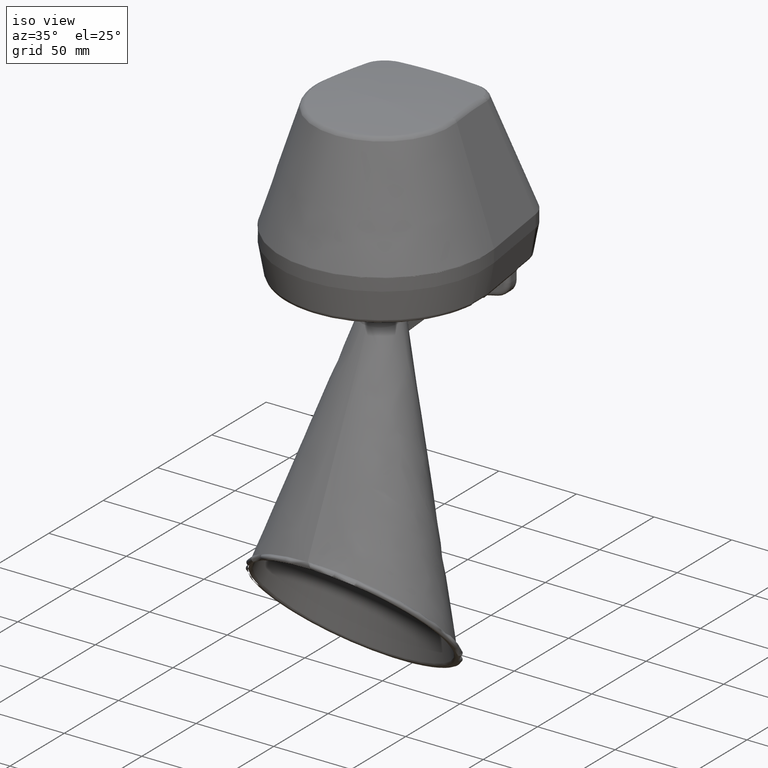
[diagram: clean part render]
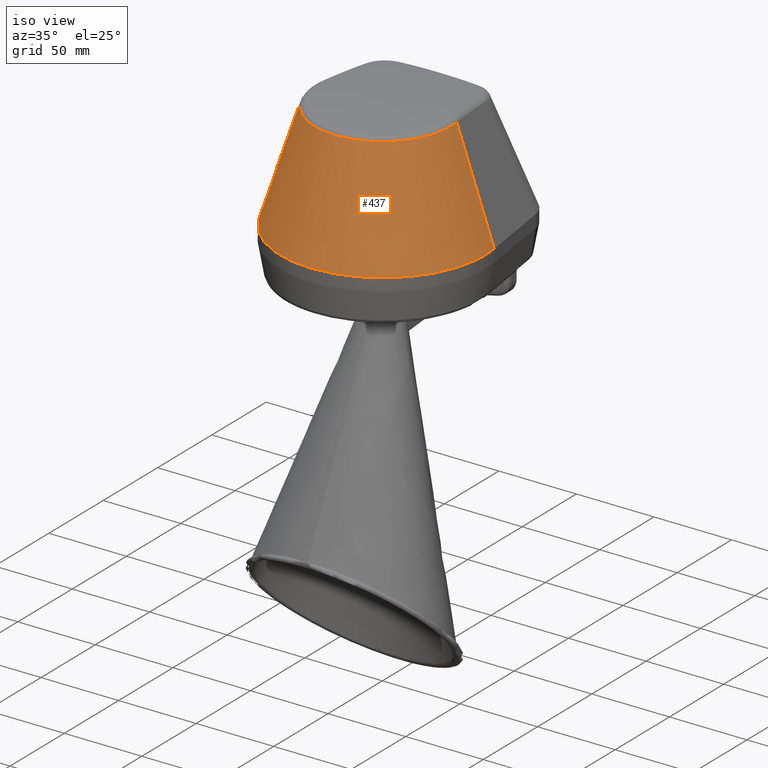
[diagram: same view with one face highlighted and labeled with its STEP entity id]
A machine part, iso view. The second image highlights one B-rep face of the part: STEP entity #437.
In plain terms, the highlighted face is a freeform B-spline surface patch.
Its self-contained STEP definition (entity closure, byte-faithful):
#201=(
BOUNDED_SURFACE()
B_SPLINE_SURFACE(4,1,((#4461,#4462),(#4463,#4464),(#4465,#4466),(#4467,#4468),
(#4469,#4470),(#4471,#4472),(#4473,#4474),(#4475,#4476),(#4477,#4478),(#4479,
#4480),(#4481,#4482)),.UNSPECIFIED.,.F.,.F.,.F.)
B_SPLINE_SURFACE_WITH_KNOTS((5,3,3,5),(2,2),(0.,0.333333333333334,0.666666666666667,
1.),(0.,1.),.UNSPECIFIED.)
GEOMETRIC_REPRESENTATION_ITEM()
RATIONAL_B_SPLINE_SURFACE(((1.02866897550093,1.02870312515866),(1.02866897550093,
1.02870312515866),(1.01136291227432,1.01143669071218),(1.02866897550093,
1.02870312515866),(1.02866897550093,1.02870312515866),(1.01136291227432,
1.01143669071218),(1.02866897550093,1.02870312515866),(1.02866897550093,
1.02870312515866),(1.01136291227432,1.01143669071218),(1.02866897550093,
1.02870312515866),(1.02866897550093,1.02870312515866)))
REPRESENTATION_ITEM('')
SURFACE()
);
#282=(
BOUNDED_CURVE()
B_SPLINE_CURVE(1,(#4283,#4284,#4285,#4286,#4287),.UNSPECIFIED.,.F.,.F.)
B_SPLINE_CURVE_WITH_KNOTS((2,1,1,1,2),(0.,0.115384615384615,0.834101757485847,
0.884615384615385,1.),.UNSPECIFIED.)
CURVE()
GEOMETRIC_REPRESENTATION_ITEM()
RATIONAL_B_SPLINE_CURVE((1.02866897550093,1.02866897550093,1.02870312515866,
1.02870312515866,1.02870312515866))
REPRESENTATION_ITEM('')
);
#283=(
BOUNDED_CURVE()
B_SPLINE_CURVE(1,(#4375,#4376,#4377,#4378,#4379),.UNSPECIFIED.,.F.,.F.)
B_SPLINE_CURVE_WITH_KNOTS((2,1,1,1,2),(0.,0.115384615384615,0.834101859380521,
0.884615384615385,1.),.UNSPECIFIED.)
CURVE()
GEOMETRIC_REPRESENTATION_ITEM()
RATIONAL_B_SPLINE_CURVE((1.02866897550093,1.02866897550093,1.02870312515866,
1.02870312515866,1.02870312515866))
REPRESENTATION_ITEM('')
);
#437=ADVANCED_FACE('',(#647),#201,.F.);
#647=FACE_OUTER_BOUND('',#829,.T.);
#829=EDGE_LOOP('',(#1303,#1304,#1305,#1306));
#1303=ORIENTED_EDGE('',*,*,#2498,.F.);
#1304=ORIENTED_EDGE('',*,*,#2499,.T.);
#1305=ORIENTED_EDGE('',*,*,#2500,.T.);
#1306=ORIENTED_EDGE('',*,*,#2501,.T.);
#2221=VERTEX_POINT('',#4288);
#2222=VERTEX_POINT('',#4289);
#2223=VERTEX_POINT('',#4374);
#2224=VERTEX_POINT('',#4380);
#2498=EDGE_CURVE('',#2221,#2222,#282,.T.);
#2499=EDGE_CURVE('',#2221,#2223,#2954,.T.);
#2500=EDGE_CURVE('',#2223,#2224,#283,.T.);
#2501=EDGE_CURVE('',#2224,#2222,#2955,.T.);
#2954=B_SPLINE_CURVE_WITH_KNOTS('',3,(#4290,#4291,#4292,#4293,#4294,#4295,
#4296,#4297,#4298,#4299,#4300,#4301,#4302,#4303,#4304,#4305,#4306,#4307,
#4308,#4309,#4310,#4311,#4312,#4313,#4314,#4315,#4316,#4317,#4318,#4319,
#4320,#4321,#4322,#4323,#4324,#4325,#4326,#4327,#4328,#4329,#4330,#4331,
#4332,#4333,#4334,#4335,#4336,#4337,#4338,#4339,#4340,#4341,#4342,#4343,
#4344,#4345,#4346,#4347,#4348,#4349,#4350,#4351,#4352,#4353,#4354,#4355,
#4356,#4357,#4358,#4359,#4360,#4361,#4362,#4363,#4364,#4365,#4366,#4367,
#4368,#4369,#4370,#4371,#4372,#4373),.UNSPECIFIED.,.F.,.F.,(4,2,2,2,2,2,
2,2,2,2,2,2,2,2,2,2,2,2,2,2,2,2,2,2,2,2,2,2,2,2,2,2,2,2,2,2,2,2,2,2,2,4),
(0.,0.0156249999999998,0.0312499999999996,0.0624999999999991,0.0937499999999987,
0.109374999999998,0.124999999999998,0.156249999999998,0.187499999999998,
0.203124999999998,0.218749999999998,0.249999999999997,0.281249999999997,
0.296874999999997,0.312499999999997,0.343749999999997,0.374999999999997,
0.390624999999997,0.406249999999997,0.437499999999997,0.468749999999997,
0.499999999999997,0.531249999999997,0.562499999999997,0.593749999999997,
0.609374999999997,0.624999999999997,0.656249999999997,0.687499999999997,
0.703124999999997,0.718749999999997,0.749999999999997,0.781249999999998,
0.796874999999998,0.812499999999998,0.843749999999998,0.874999999999999,
0.890624999999999,0.906249999999999,0.937499999999999,0.96875,1.),.UNSPECIFIED.);
#2955=B_SPLINE_CURVE_WITH_KNOTS('',3,(#4381,#4382,#4383,#4384,#4385,#4386,
#4387,#4388,#4389,#4390,#4391,#4392,#4393,#4394,#4395,#4396,#4397,#4398,
#4399,#4400,#4401,#4402,#4403,#4404,#4405,#4406,#4407,#4408,#4409,#4410,
#4411,#4412,#4413,#4414,#4415,#4416,#4417,#4418,#4419,#4420,#4421,#4422,
#4423,#4424,#4425,#4426,#4427,#4428,#4429,#4430,#4431,#4432,#4433,#4434,
#4435,#4436,#4437,#4438,#4439,#4440,#4441,#4442,#4443,#4444,#4445,#4446,
#4447,#4448,#4449,#4450,#4451,#4452,#4453,#4454,#4455,#4456,#4457,#4458,
#4459,#4460),.UNSPECIFIED.,.F.,.F.,(4,2,1,1,2,2,2,2,2,2,2,2,2,2,2,2,2,2,
2,2,2,2,2,2,2,2,2,2,2,2,2,2,2,2,2,2,2,2,2,2,4),(0.,0.001953125,0.00390625,
0.00781250000000001,0.0156250000000001,0.0312500000000001,0.0625000000000003,
0.0937500000000005,0.109375000000001,0.125000000000001,0.187500000000001,
0.203125000000001,0.218750000000001,0.250000000000001,0.281250000000001,
0.296875000000001,0.312500000000001,0.375000000000001,0.390625000000001,
0.406250000000001,0.437500000000001,0.468750000000001,0.484375000000001,
0.500000000000001,0.562500000000001,0.578125000000001,0.593750000000001,
0.625000000000001,0.687500000000001,0.703125000000001,0.718750000000001,
0.75,0.78125,0.796875,0.8125,0.875,0.890625,0.90625,0.9375,0.96875,1.),.UNSPECIFIED.);
#4283=CARTESIAN_POINT('',(-68.939612144133,10.0349855703964,120.305804325258));
#4284=CARTESIAN_POINT('',(-65.3320601765309,9.51780727579866,131.704697130056));
#4285=CARTESIAN_POINT('',(-42.8617909946028,6.29647170003265,202.704697130056));
#4286=CARTESIAN_POINT('',(-41.2825645475414,6.07007395219432,207.694627461266));
#4287=CARTESIAN_POINT('',(-37.6752520943669,5.55292999436134,219.092763464967));
#4288=CARTESIAN_POINT('',(-65.2850428706694,9.5110668794633,131.853259156133));
#4289=CARTESIAN_POINT('',(-43.4469457460688,6.38035942754336,200.855765681229));
#4290=CARTESIAN_POINT('',(-65.2850428706694,9.51106687946331,131.853259156133));
#4291=CARTESIAN_POINT('',(-65.453772531119,8.33410100575422,131.853259314748));
#4292=CARTESIAN_POINT('',(-65.5907159879697,7.15128939397285,131.853259156167));
#4293=CARTESIAN_POINT('',(-65.7997061907493,4.79221977120337,131.853259156306));
#4294=CARTESIAN_POINT('',(-65.8720564087726,3.61441151310799,131.853259156412));
#4295=CARTESIAN_POINT('',(-65.9944530189115,0.0860707594742702,131.853259156845));
#4296=CARTESIAN_POINT('',(-65.950110005468,-2.25939192956353,131.853259157288));
#4297=CARTESIAN_POINT('',(-65.6123505414678,-6.9369391734819,131.853259158522));
#4298=CARTESIAN_POINT('',(-65.3189426365123,-9.26902418736043,131.853259159312));
#4299=CARTESIAN_POINT('',(-64.6876658703523,-12.756883934044,131.85325916079));
#4300=CARTESIAN_POINT('',(-64.4445873578309,-13.920742092789,131.853259161333));
#4301=CARTESIAN_POINT('',(-63.8964522210221,-16.23064883824,131.853259162514));
#4302=CARTESIAN_POINT('',(-63.592406807352,-17.3732435927929,131.853259163151));
#4303=CARTESIAN_POINT('',(-62.5922315775207,-20.7647330448171,131.853259165199));
#4304=CARTESIAN_POINT('',(-61.8083095768417,-22.9774346777978,131.853259166749));
#4305=CARTESIAN_POINT('',(-60.0099814567615,-27.307818932457,131.853259170221));
#4306=CARTESIAN_POINT('',(-58.9955764436992,-29.4255020102331,131.853259172144));
#4307=CARTESIAN_POINT('',(-57.297969046091,-32.5294692008542,131.853259175312));
#4308=CARTESIAN_POINT('',(-56.7027047037944,-33.552006509263,131.853259176415));
#4309=CARTESIAN_POINT('',(-55.4520680772366,-35.5723011228051,131.853259178716));
#4310=CARTESIAN_POINT('',(-54.8002309280432,-36.5641458351295,131.853259179908));
#4311=CARTESIAN_POINT('',(-52.77620322958,-39.4711835298884,131.853259183582));
#4312=CARTESIAN_POINT('',(-51.3317929233768,-41.324412966153,131.853259186173));
#4313=CARTESIAN_POINT('',(-48.2568915144933,-44.8648809067989,131.853259191602));
#4314=CARTESIAN_POINT('',(-46.6263958195171,-46.5521153146827,131.853259194441));
#4315=CARTESIAN_POINT('',(-44.0392763326094,-48.9568543710577,131.85325919886));
#4316=CARTESIAN_POINT('',(-43.153290973432,-49.7373711062424,131.85325920036));
#4317=CARTESIAN_POINT('',(-41.3331660213577,-51.2554492245252,131.853259203409));
#4318=CARTESIAN_POINT('',(-40.3978752593872,-51.9936036085516,131.85325920496));
#4319=CARTESIAN_POINT('',(-37.5533279918389,-54.1167796187469,131.853259209621));
#4320=CARTESIAN_POINT('',(-35.5949517750516,-55.4200636998228,131.853259212683));
#4321=CARTESIAN_POINT('',(-31.5574355374469,-57.8081934691694,131.853259219265));
#4322=CARTESIAN_POINT('',(-29.4782889561112,-58.8930272907298,131.853259222791));
#4323=CARTESIAN_POINT('',(-26.2682793232614,-60.3551524807031,131.85325922847));
#4324=CARTESIAN_POINT('',(-25.1830291860431,-60.8149487997503,131.853259230428));
#4325=CARTESIAN_POINT('',(-22.9815164376934,-61.678445863406,131.853259234482));
#4326=CARTESIAN_POINT('',(-21.8617931001007,-62.0832365261155,131.853259236585));
#4327=CARTESIAN_POINT('',(-18.484405551472,-63.2018410896387,131.853259243055));
#4328=CARTESIAN_POINT('',(-16.2112773494761,-63.8203299901184,131.85325924758));
#4329=CARTESIAN_POINT('',(-11.6232977514259,-64.8107881437825,131.853259257066));
#4330=CARTESIAN_POINT('',(-9.30844283652623,-65.182736606025,131.853259262028));
#4331=CARTESIAN_POINT('',(-4.63689043454385,-65.6794085428453,131.853259272408));
#4332=CARTESIAN_POINT('',(-2.27980240440349,-65.8041601834146,131.853259277828));
#4333=CARTESIAN_POINT('',(2.47621406479051,-65.7970782749643,131.853259289146));
#4334=CARTESIAN_POINT('',(4.82975221108778,-65.6653624983343,131.853259294935));
#4335=CARTESIAN_POINT('',(9.48996111878886,-65.1564386255638,131.853259306757));
#4336=CARTESIAN_POINT('',(11.796624799938,-64.7791934429054,131.85325931279));
#4337=CARTESIAN_POINT('',(16.3634685658842,-63.7812210502976,131.85325932508));
#4338=CARTESIAN_POINT('',(18.6236509246073,-63.1605057512201,131.853259331337));
#4339=CARTESIAN_POINT('',(21.9781602240121,-62.0420989897831,131.853259340871));
#4340=CARTESIAN_POINT('',(23.0903566530608,-61.6380082725399,131.853259344074));
#4341=CARTESIAN_POINT('',(25.3024870919677,-60.7655960358284,131.853259350526));
#4342=CARTESIAN_POINT('',(26.3921323427684,-60.3013165039447,131.853259353746));
#4343=CARTESIAN_POINT('',(29.6108061735286,-58.8270260949034,131.853259363369));
#4344=CARTESIAN_POINT('',(31.6906682667202,-57.7354166663201,131.853259369741));
#4345=CARTESIAN_POINT('',(35.7211517411185,-55.3389890694604,131.853259382353));
#4346=CARTESIAN_POINT('',(37.6717710734071,-54.0341675210785,131.853259388581));
#4347=CARTESIAN_POINT('',(40.4993602383363,-51.9147037186498,131.853259398692));
#4348=CARTESIAN_POINT('',(41.425465501571,-51.1811203126264,131.853259402156));
#4349=CARTESIAN_POINT('',(43.244153730505,-49.6586516788908,131.853259409282));
#4350=CARTESIAN_POINT('',(44.1361412830528,-48.8699371800207,131.853259412942));
#4351=CARTESIAN_POINT('',(46.7293934536608,-46.4495721979973,131.853259424096));
#4352=CARTESIAN_POINT('',(48.3594459542476,-44.7547184978492,131.853259431804));
#4353=CARTESIAN_POINT('',(51.4268793537457,-41.2064828821879,131.853259447785));
#4354=CARTESIAN_POINT('',(52.8642514997857,-39.3530937649021,131.853259456059));
#4355=CARTESIAN_POINT('',(54.8744427736353,-36.4529922643229,131.853259468919));
#4356=CARTESIAN_POINT('',(55.5201443020334,-35.4662467718241,131.85325947328));
#4357=CARTESIAN_POINT('',(56.7619553135408,-33.45195196121,131.853259482157));
#4358=CARTESIAN_POINT('',(57.3596741755215,-32.4212572648091,131.853259486687));
#4359=CARTESIAN_POINT('',(59.0594513885076,-29.2986802104397,131.853259500375));
#4360=CARTESIAN_POINT('',(60.0717135173565,-27.1726691721639,131.853259509649));
#4361=CARTESIAN_POINT('',(61.8616047740657,-22.8347029203309,131.853259528488));
#4362=CARTESIAN_POINT('',(62.6392162315064,-20.6227412342413,131.853259538053));
#4363=CARTESIAN_POINT('',(63.6288897846962,-17.2400589382885,131.853259552611));
#4364=CARTESIAN_POINT('',(63.9292617301482,-16.1016855139019,131.853259557499));
#4365=CARTESIAN_POINT('',(64.470072853551,-13.8029857759206,131.853259567344));
#4366=CARTESIAN_POINT('',(64.7108244965668,-12.6408931756722,131.853259572309));
#4367=CARTESIAN_POINT('',(65.3389794910602,-9.13239817873576,131.853259587254));
#4368=CARTESIAN_POINT('',(65.6281277802986,-6.79093872192843,131.853259597171));
#4369=CARTESIAN_POINT('',(65.9558001866888,-2.103257988201,131.853259616885));
#4370=CARTESIAN_POINT('',(65.9943003034609,0.242963744722623,131.85325962668));
#4371=CARTESIAN_POINT('',(65.8204189188331,4.94017392211809,131.853259646106));
#4372=CARTESIAN_POINT('',(65.6080317765532,7.29138247784475,131.853259962605));
#4373=CARTESIAN_POINT('',(65.2657570645544,9.6446188633979,131.853259665256));
#4374=CARTESIAN_POINT('',(65.2657570646116,9.64461886340642,131.853259665075));
#4375=CARTESIAN_POINT('',(68.9171827897428,10.1903039731618,120.305805941313));
#4376=CARTESIAN_POINT('',(65.3127340930662,9.65163931702041,131.704697130056));
#4377=CARTESIAN_POINT('',(42.8617909946028,6.29647170003262,202.704697130056));
#4378=CARTESIAN_POINT('',(41.2839262049175,6.06066865055183,207.694616688283));
#4379=CARTESIAN_POINT('',(37.6797168166344,5.52203975770864,219.092751076036));
#4380=CARTESIAN_POINT('',(43.4464438191732,6.38384478790586,200.855761414418));
#4381=CARTESIAN_POINT('',(43.4464438191731,6.38384478790585,200.855761414418));
#4382=CARTESIAN_POINT('',(43.4602781416022,6.28739878408394,200.855761426608));
#4383=CARTESIAN_POINT('',(43.4741723198216,6.18818527086009,200.855761424392));
#4384=CARTESIAN_POINT('',(43.5008876346105,5.99255146889335,200.855761434375));
#4385=CARTESIAN_POINT('',(43.5399484148731,5.69912730686448,200.855761449361));
#4386=CARTESIAN_POINT('',(43.6240278030881,5.01465611448993,200.855761484401));
#4387=CARTESIAN_POINT('',(43.6840639650229,4.42828201190133,200.855761514554));
#4388=CARTESIAN_POINT('',(43.7882600118473,3.25595010230019,200.855761575009));
#4389=CARTESIAN_POINT('',(43.8365672667113,2.47495025268366,200.855761615508));
#4390=CARTESIAN_POINT('',(43.9189123977586,0.133591540387593,200.85576173751));
#4391=CARTESIAN_POINT('',(43.890548684557,-1.42513107561232,200.855761819514));
#4392=CARTESIAN_POINT('',(43.6677297819756,-4.53822118414349,200.855761984493));
#4393=CARTESIAN_POINT('',(43.4732886509011,-6.09258904530086,200.85576206747));
#4394=CARTESIAN_POINT('',(43.0530435878304,-8.42076922249155,200.855762192472));
#4395=CARTESIAN_POINT('',(42.891404755794,-9.19577327000457,200.855762234205));
#4396=CARTESIAN_POINT('',(42.5291143132563,-10.7258899197194,200.855762316811));
#4397=CARTESIAN_POINT('',(42.328069440063,-11.4833764330403,200.855762357813));
#4398=CARTESIAN_POINT('',(41.2250073336737,-15.2335817690152,200.855762561287));
#4399=CARTESIAN_POINT('',(40.0328155001658,-18.115889244044,200.855762719147));
#4400=CARTESIAN_POINT('',(38.1480327007334,-21.5686500928288,200.855762910023));
#4401=CARTESIAN_POINT('',(37.7498525893619,-22.2535779894949,200.855762947986));
#4402=CARTESIAN_POINT('',(36.9212675959589,-23.5941956634896,200.855763022503));
#4403=CARTESIAN_POINT('',(36.4905921389233,-24.250678622974,200.855763059101));
#4404=CARTESIAN_POINT('',(35.1503662962719,-26.1794510927574,200.855763166976));
#4405=CARTESIAN_POINT('',(34.1927510554793,-27.4111777995826,200.855763236339));
#4406=CARTESIAN_POINT('',(32.150905772128,-29.7677786844561,200.855763370241));
#4407=CARTESIAN_POINT('',(31.0666787864485,-30.8926554422603,200.855763434781));
#4408=CARTESIAN_POINT('',(29.3433332743042,-32.4981062708259,200.855763528129));
#4409=CARTESIAN_POINT('',(28.7517874915142,-33.0203276478345,200.855763558711));
#4410=CARTESIAN_POINT('',(27.5393806676543,-34.0335452854459,200.855763618551));
#4411=CARTESIAN_POINT('',(26.9222106864211,-34.5215429164268,200.855763647631));
#4412=CARTESIAN_POINT('',(23.7827325525281,-36.8705194713194,200.855763789046));
#4413=CARTESIAN_POINT('',(21.1013537956302,-38.4615422392993,200.855763890033));
#4414=CARTESIAN_POINT('',(17.53781038076,-40.0908444479165,200.855764024236));
#4415=CARTESIAN_POINT('',(16.8143974654183,-40.398538909596,200.855764051159));
#4416=CARTESIAN_POINT('',(15.3457051892203,-40.9768186410758,200.855764105128));
#4417=CARTESIAN_POINT('',(14.6023659997676,-41.2465007657467,200.855764132101));
#4418=CARTESIAN_POINT('',(12.365807557268,-41.9906629334468,200.855764212193));
#4419=CARTESIAN_POINT('',(10.8583252130897,-42.4035637878604,200.855764264772));
#4420=CARTESIAN_POINT('',(7.81123315712373,-43.0667937056403,200.855764368088));
#4421=CARTESIAN_POINT('',(6.27162229860424,-43.3171169662829,200.855764418824));
#4422=CARTESIAN_POINT('',(3.93784384577319,-43.5693237582,200.855764493415));
#4423=CARTESIAN_POINT('',(3.15584881649001,-43.6328032385223,200.855764518025));
#4424=CARTESIAN_POINT('',(1.5835692854156,-43.7178155819134,200.855764566724));
#4425=CARTESIAN_POINT('',(0.791378292480849,-43.7392561245572,200.855764590866));
#4426=CARTESIAN_POINT('',(-3.14577236224339,-43.7396103431923,200.855764708887));
#4427=CARTESIAN_POINT('',(-6.24748591882932,-43.4047220423964,200.8557647956));
#4428=CARTESIAN_POINT('',(-10.0659759615146,-42.5766199243309,200.855764895094));
#4429=CARTESIAN_POINT('',(-10.826709665275,-42.3903035255841,200.855764914547));
#4430=CARTESIAN_POINT('',(-12.3421540084609,-41.9756193200549,200.855764952577));
#4431=CARTESIAN_POINT('',(-13.098712475439,-41.7466241347164,200.855764971197));
#4432=CARTESIAN_POINT('',(-15.3458935815813,-40.9994713499022,200.855765025446));
#4433=CARTESIAN_POINT('',(-16.8043277598615,-40.425070278228,200.855765059237));
#4434=CARTESIAN_POINT('',(-21.0645440227401,-38.4806084705835,200.855765154227));
#4435=CARTESIAN_POINT('',(-23.7525535166929,-36.8918147540759,200.855765206886));
#4436=CARTESIAN_POINT('',(-26.9154727636784,-34.526903080728,200.855765272227));
#4437=CARTESIAN_POINT('',(-27.5346995545639,-34.0372061619857,200.855765285172));
#4438=CARTESIAN_POINT('',(-28.7399780311884,-33.0304468352316,200.855765310627));
#4439=CARTESIAN_POINT('',(-29.3271523923012,-32.5125501376243,200.85576532316));
#4440=CARTESIAN_POINT('',(-31.0429806154724,-30.9159658245227,200.855765360111));
#4441=CARTESIAN_POINT('',(-32.1260672790307,-29.794503826027,200.855765383884));
#4442=CARTESIAN_POINT('',(-34.1711976147984,-27.4379555676802,200.855765429408));
#4443=CARTESIAN_POINT('',(-35.133250106506,-26.2028775867801,200.855765451159));
#4444=CARTESIAN_POINT('',(-36.4828099498457,-24.2624734981396,200.855765482053));
#4445=CARTESIAN_POINT('',(-36.9175042692897,-23.6000108309616,200.855765492074));
#4446=CARTESIAN_POINT('',(-37.7451475736167,-22.2614661678191,200.855765511277));
#4447=CARTESIAN_POINT('',(-38.139447945171,-21.5835597222359,200.85576552049));
#4448=CARTESIAN_POINT('',(-40.0150708948347,-18.1516209821397,200.855765564619));
#4449=CARTESIAN_POINT('',(-41.2120198346129,-15.2718123892131,200.855765593723));
#4450=CARTESIAN_POINT('',(-42.3231026600545,-11.5017233642395,200.855765622414));
#4451=CARTESIAN_POINT('',(-42.5263730536034,-10.7367925345592,200.855765627782));
#4452=CARTESIAN_POINT('',(-42.8901401383817,-9.20179616322486,200.855765637671));
#4453=CARTESIAN_POINT('',(-43.0505924279781,-8.43260015296583,200.855765642191));
#4454=CARTESIAN_POINT('',(-43.4689629735298,-6.12002222591068,200.855765654542));
#4455=CARTESIAN_POINT('',(-43.6640710130188,-4.5716643643498,200.855765661164));
#4456=CARTESIAN_POINT('',(-43.8891598457214,-1.46186694683404,200.855765671512));
#4457=CARTESIAN_POINT('',(-43.9191427228255,0.0995724440310088,200.855765675237));
#4458=CARTESIAN_POINT('',(-43.8107624214443,3.23578792034865,200.855765680099));
#4459=CARTESIAN_POINT('',(-43.6713572701074,4.81498778771471,200.855765681229));
#4460=CARTESIAN_POINT('',(-43.4469457460688,6.38035942754338,200.855765681229));
#4461=CARTESIAN_POINT('',(65.3127340930662,9.65163931702041,131.704697130056));
#4462=CARTESIAN_POINT('',(42.8617909946028,6.29647170003262,202.704697130056));
#4463=CARTESIAN_POINT('',(67.8815503277864,-8.00935209847821,131.704697130056));
#4464=CARTESIAN_POINT('',(44.5224653778959,-5.28748145804731,202.704697130056));
#4465=CARTESIAN_POINT('',(64.338495767261,-29.1191638731859,131.704697130056));
#4466=CARTESIAN_POINT('',(42.1729628864395,-19.1218684586536,202.704697130056));
#4467=CARTESIAN_POINT('',(50.7523555860627,-45.6598465604053,131.704697130056));
#4468=CARTESIAN_POINT('',(33.250306624249,-29.9522253718259,202.704697130056));
#4469=CARTESIAN_POINT('',(20.7486769713791,-64.9941944441869,131.704697130056));
#4470=CARTESIAN_POINT('',(13.5592326045733,-42.6031085289544,202.704697130056));
#4471=CARTESIAN_POINT('',(0.0724084181231755,-70.5321821198764,131.704697130056));
#4472=CARTESIAN_POINT('',(9.64800315399839E-015,-46.2166437529395,202.704697130056));
#4473=CARTESIAN_POINT('',(-20.6151629163712,-65.0365674078851,131.704697130056));
#4474=CARTESIAN_POINT('',(-13.5592326045733,-42.6031085289545,202.704697130056));
#4475=CARTESIAN_POINT('',(-50.6583905866557,-45.7637313515138,131.704697130056));
#4476=CARTESIAN_POINT('',(-33.250306624249,-29.9522253718259,202.704697130056));
#4477=CARTESIAN_POINT('',(-64.2783906456834,-29.2509185331436,131.704697130056));
#4478=CARTESIAN_POINT('',(-42.1729628864395,-19.1218684586536,202.704697130056));
#4479=CARTESIAN_POINT('',(-67.8646873500525,-8.14841003934881,131.704697130056));
#4480=CARTESIAN_POINT('',(-44.5224653778959,-5.28748145804733,202.704697130056));
#4481=CARTESIAN_POINT('',(-65.3320601765309,9.51780727579866,131.704697130056));
#4482=CARTESIAN_POINT('',(-42.8617909946028,6.29647170003265,202.704697130056));